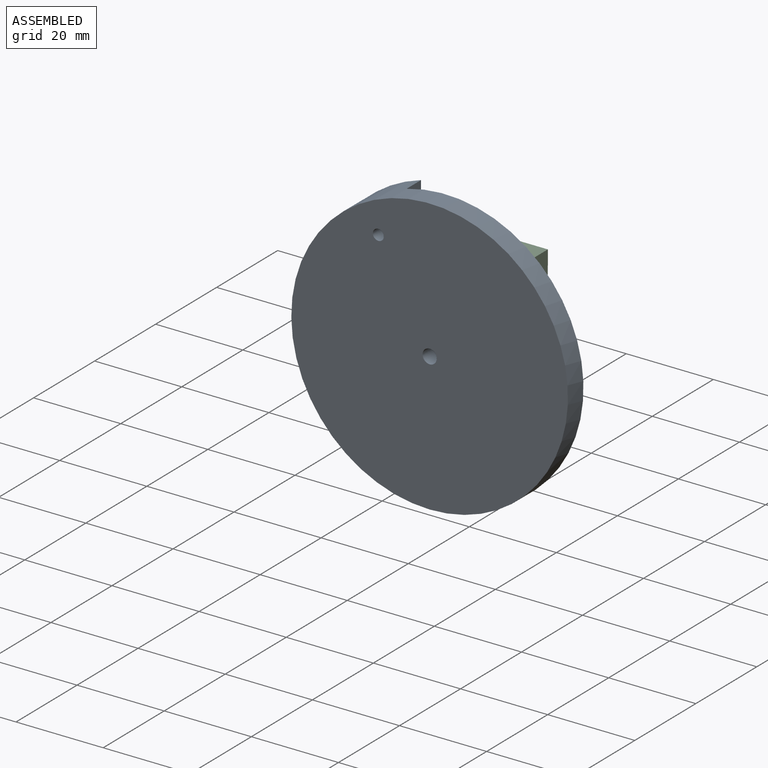
[diagram: assembled view]
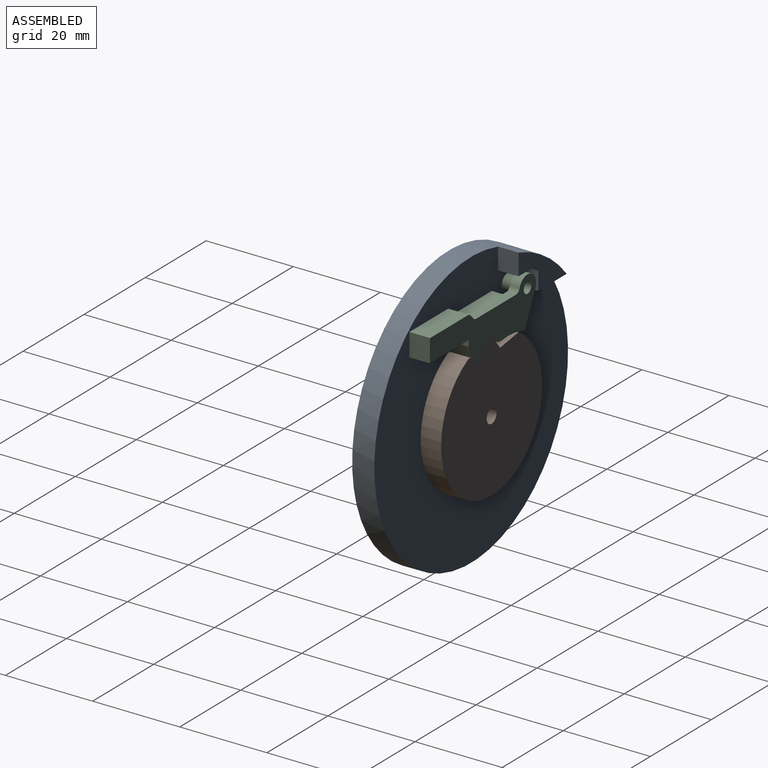
[diagram: assembled view, second angle]
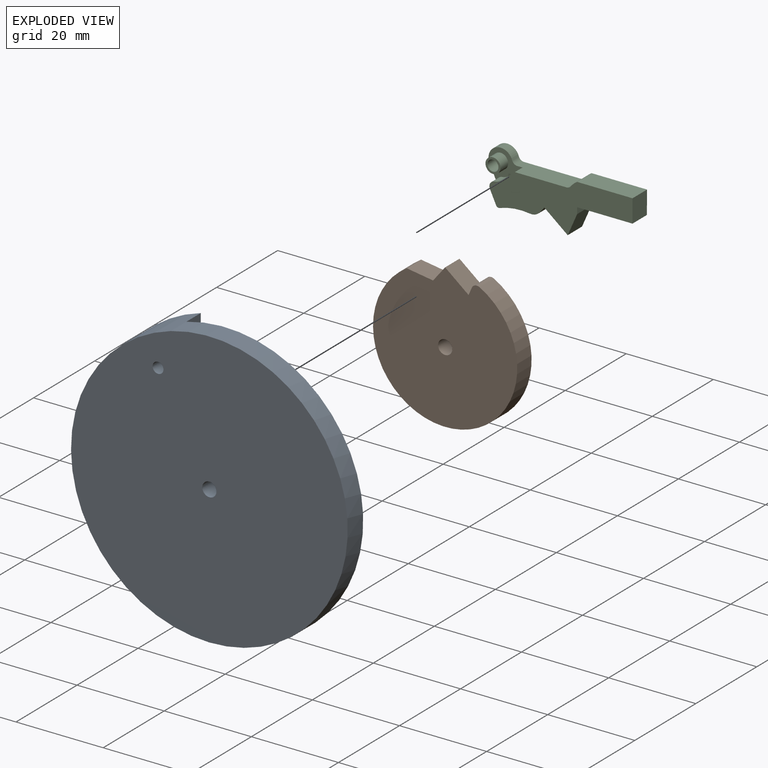
[diagram: exploded view]
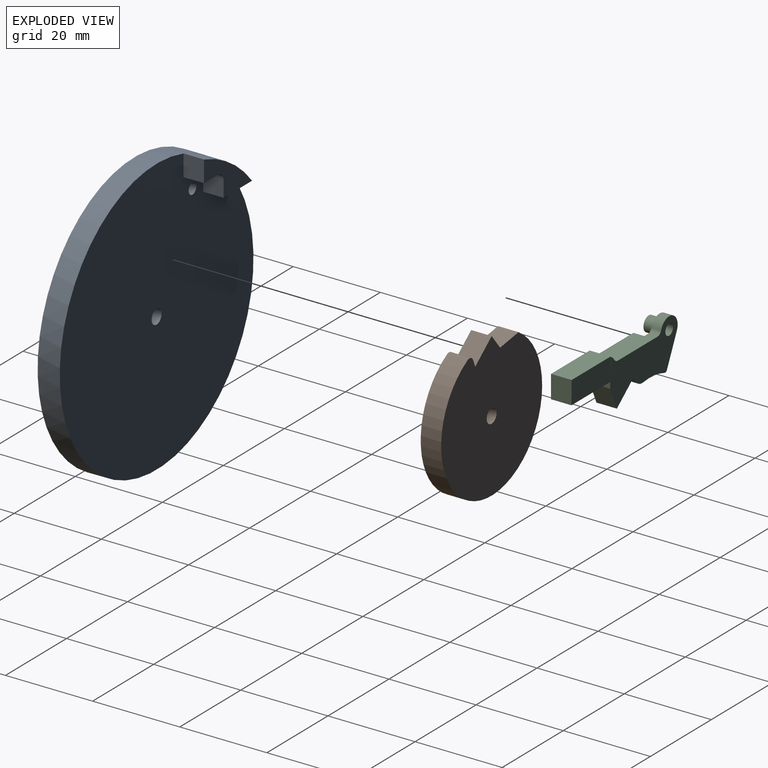
[diagram: exploded view, second angle]
ASSEMBLY  parts=3 mates=2
PART A: 13 faces, bbox 63.5x9.8x63.5 mm
  f0: plane 63.5x63.5mm, normal (0,1,0), area 3088.2mm2, adj f1,f4,f5,f8,f9,f10,f11,f12
  f1: cylinder r=31.75mm len=63.5mm, axis (0,1,0), area 1013.4mm2, adj f0,f2,f3
  f2: plane 63.5x63.5mm, normal (0,-1,0), area 3153.7mm2, adj f1,f4,f5
  f3: plane 15.77x10.42mm, normal (0,1,0), area 0.2mm2, adj f1,f7
  f4: cylinder r=1.63mm len=5.08mm, axis (0,-1,0), area 51.9mm2, adj f0,f2
  f5: cylinder r=1.25mm len=5.08mm, axis (0,1,0), area 39.9mm2, adj f0,f2
  f6: plane 15.77x10.42mm, normal (0,1,0), area 65.3mm2, adj f7,f8,f9,f10,f11,f12
  f7: cylinder r=32.1mm len=15.77mm, axis (0,-1,0), area 90.1mm2, adj f3,f6,f8,f9
  f8: plane 4.92x4.7mm, normal (1,0,0), area 23.1mm2, adj f0,f6,f7,f10
  f9: plane 9.32x4.7mm, normal (0,0,-1), area 43.8mm2, adj f0,f6,f7,f12
  f10: plane 4.7x4.7mm, normal (0,0,-1), area 22.1mm2, adj f0,f6,f8,f11
  f11: cylinder r=1.75mm len=4.7mm, axis (0,-1,0), area 12.9mm2, adj f0,f6,f10,f12
  f12: plane 4.7x3.75mm, normal (1,0,0), area 17.6mm2, adj f0,f6,f9,f11
PART B: 9 faces, bbox 33.1x33.1x4.7 mm
  f0: cylinder r=1.62mm len=4.7mm, axis (0,0,-1), area 48mm2, adj f2,f3
  f1: cylinder r=16.55mm len=33.1mm, axis (0,0,-1), area 406.3mm2, adj f2,f3,f6,f8
  f2: plane 33.1x33.1mm, normal (0,0,1), area 823.9mm2, adj f0,f1,f4,f5,f6,f7,f8
  f3: plane 33.1x33.1mm, normal (0,0,-1), area 823.9mm2, adj f0,f1,f4,f5,f6,f7,f8
  f4: plane 5.37x4.7mm, normal (-0.63,-0.78,0), area 32.3mm2, adj f2,f3,f5,f7
  f5: plane 4.7x1.7mm, normal (0.92,-0.4,0), area 8.7mm2, adj f2,f3,f4,f8
  f6: plane 6.04x4.7mm, normal (-0.15,-0.99,0), area 28.7mm2, adj f1,f2,f3,f7
  f7: plane 4.7x3.47mm, normal (0.78,-0.63,0), area 20.9mm2, adj f2,f3,f4,f6
  f8: cylinder r=1.27mm len=4.7mm, axis (0,0,-1), area 9.9mm2, adj f1,f2,f3,f5
PART C: 28 faces, bbox 34.8x12.6x4.7 mm
  f0: cylinder r=3.23mm len=2.5mm, axis (0,0,1), area 4.8mm2, adj f1,f3,f12,f20
  f1: cylinder r=1.27mm len=2.5mm, axis (0,0,1), area 6.1mm2, adj f0,f3,f6,f20
  f2: plane 13.02x4.7mm, normal (0,-1,0), area 58.2mm2, adj f3,f11,f12,f13,f20,f21
  f3: plane 32.85x11.63mm, normal (0,0,-1), area 207mm2, adj f0,f1,f2,f5,f6,f7,f8,f9
  f4: plane 13.3x0.04mm, normal (0,1,0), area 0.6mm2, adj f11,f16,f25,f27
  f5: cylinder r=5.08mm len=4.74mm, axis (0,0,1), area 9.2mm2, adj f3,f11,f13,f16,f26
  f6: plane 6.87x4.7mm, normal (-0.9,0.43,0), area 25.1mm2, adj f1,f3,f11,f15,f20,f22
  f7: plane 4.96x4.7mm, normal (0.92,0.4,0), area 25.5mm2, adj f3,f8,f11,f17
  f8: plane 5.37x4.7mm, normal (-0.63,0.78,0), area 32.3mm2, adj f3,f7,f9,f11
  f9: plane 4.7x1.22mm, normal (0.78,0.63,0), area 7.3mm2, adj f3,f8,f11,f14
  f10: cylinder r=14.61mm len=6.95mm, axis (0,0,-1), area 33.1mm2, adj f3,f11,f14,f15
  f11: plane 34.8x12.62mm, normal (0,0,1), area 188.7mm2, adj f2,f4,f5,f6,f7,f8,f9,f10
  f12: plane 2.94x2.5mm, normal (-0.64,-0.77,0), area 9.6mm2, adj f0,f2,f3,f20
  f13: cylinder r=1.27mm len=4.7mm, axis (0,0,1), area 5.5mm2, adj f2,f3,f5,f11
  f14: cylinder r=2.54mm len=4.7mm, axis (0,0,-1), area 12.4mm2, adj f3,f9,f10,f11
  f15: cylinder r=0.64mm len=4.7mm, axis (0,0,-1), area 4.4mm2, adj f3,f6,f10,f11
  f16: cylinder r=4.19mm len=3.3mm, axis (0,-1,0), area 1.9mm2, adj f4,f5,f11,f25
  f17: plane 4.7x1.41mm, normal (1,0,0), area 6.6mm2, adj f3,f7,f11,f24
  f18: cylinder r=1.25mm len=4.7mm, axis (0,0,-1), area 36.9mm2, adj f11,f23
  f19: cylinder r=1.72mm len=3.45mm, axis (0,0,1), area 27.1mm2, adj f20,f23
  f20: plane 7.8x7.8mm, normal (0,0,-1), area 21mm2, adj f0,f1,f2,f6,f12,f19,f21,f22
  f21: cylinder r=1.26mm len=2.2mm, axis (0,0,1), area 3.5mm2, adj f2,f11,f20,f22
  f22: cylinder r=2.78mm len=5.41mm, axis (0,0,1), area 20mm2, adj f6,f11,f20,f21
  f23: plane 3.45x3.45mm, normal (0,0,-1), area 4.4mm2, adj f18,f19
  f24: plane 12.7x4.7mm, normal (0,1,0), area 59.7mm2, adj f3,f11,f17,f27
  f25: plane 12.7x3.3mm, normal (0,0,1), area 41.9mm2, adj f4,f16,f26,f27
  f26: plane 12.7x4.74mm, normal (0,-1,0), area 60.2mm2, adj f3,f5,f25,f27
  f27: plane 5.26x4.74mm, normal (1,0,0), area 24.9mm2, adj f3,f4,f11,f24,f25,f26
PLACE A at identity
PLACE B rot(axis=(0,-0.71,0.71),180deg) t=(-8.82,9.4,13.95)mm
PLACE C rot(axis=(-1,0,0),90deg) t=(-2.07,4.7,41.52)mm
MATE cylindrical C.f0 <-> A.f5  axis (0,-1,0) through (-20.6,4.7,52.58)mm
MATE cylindrical B.f0 <-> A.f1  axis (0,1,0) through (-8.82,4.7,30.5)mm
